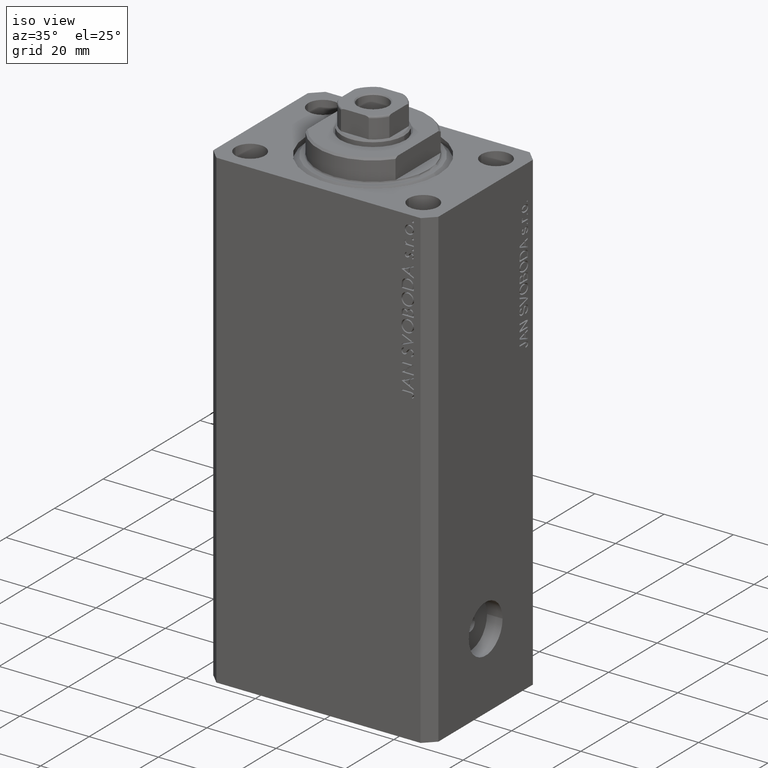
[diagram: clean part render]
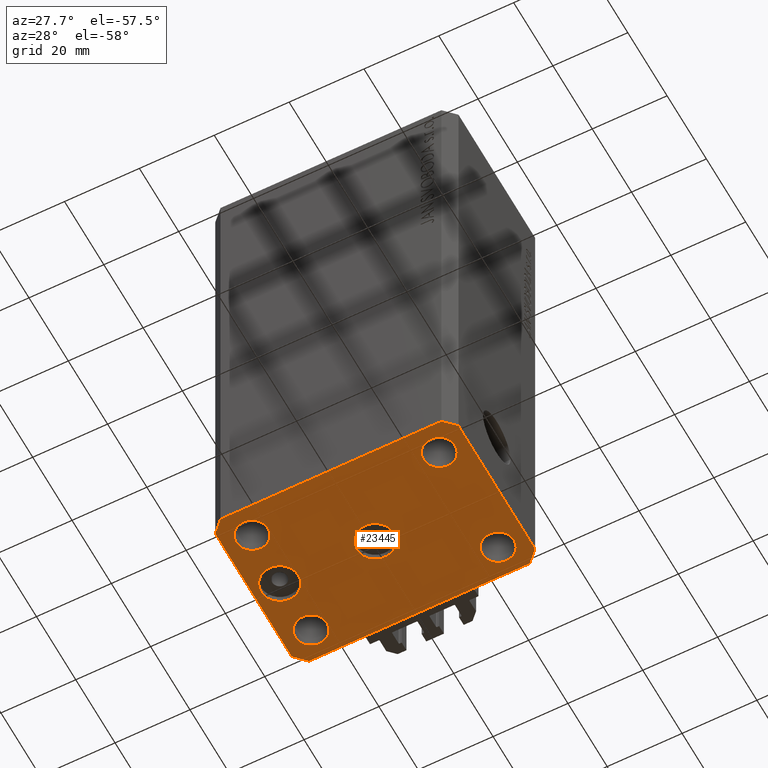
[diagram: tour spotlight — one face highlighted and labeled with its STEP entity id]
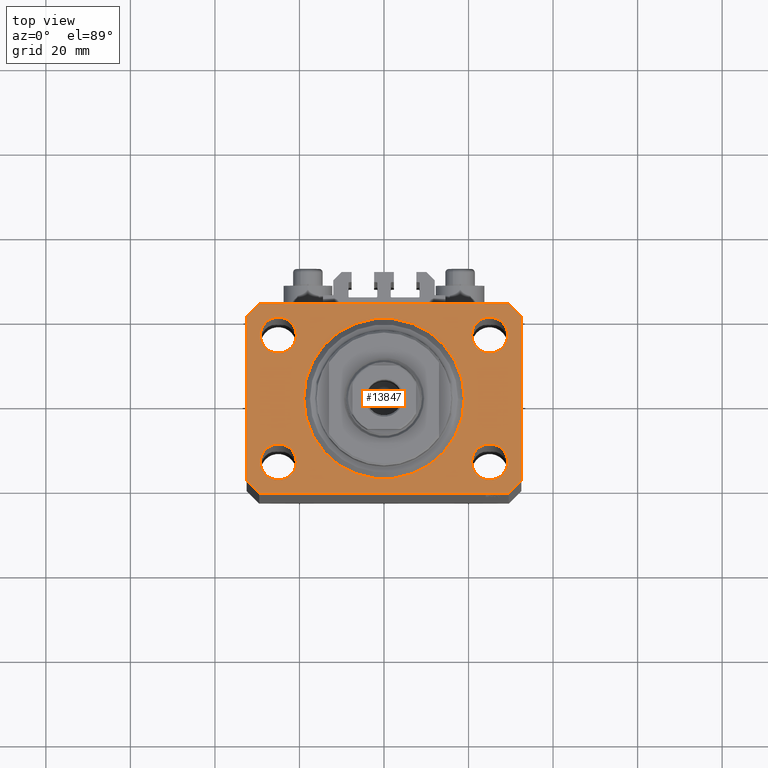
[diagram: tour spotlight — one face highlighted and labeled with its STEP entity id]
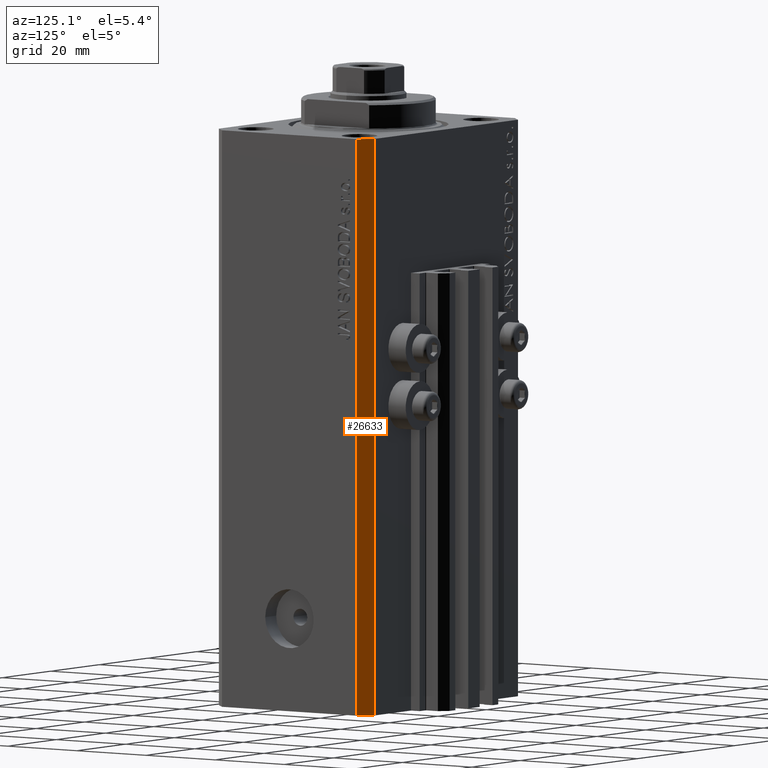
[diagram: tour spotlight — one face highlighted and labeled with its STEP entity id]
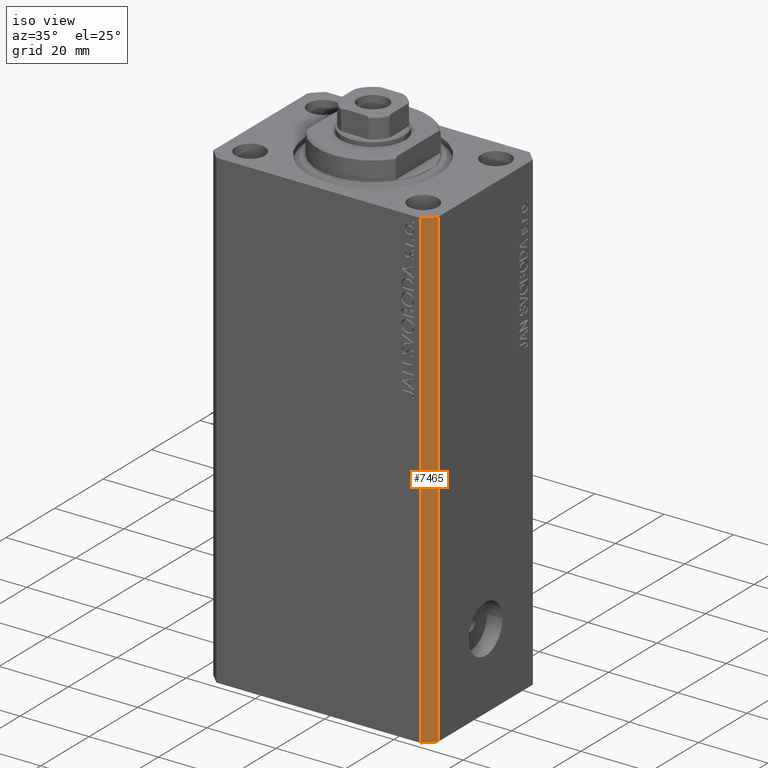
[diagram: tour spotlight — one face highlighted and labeled with its STEP entity id]
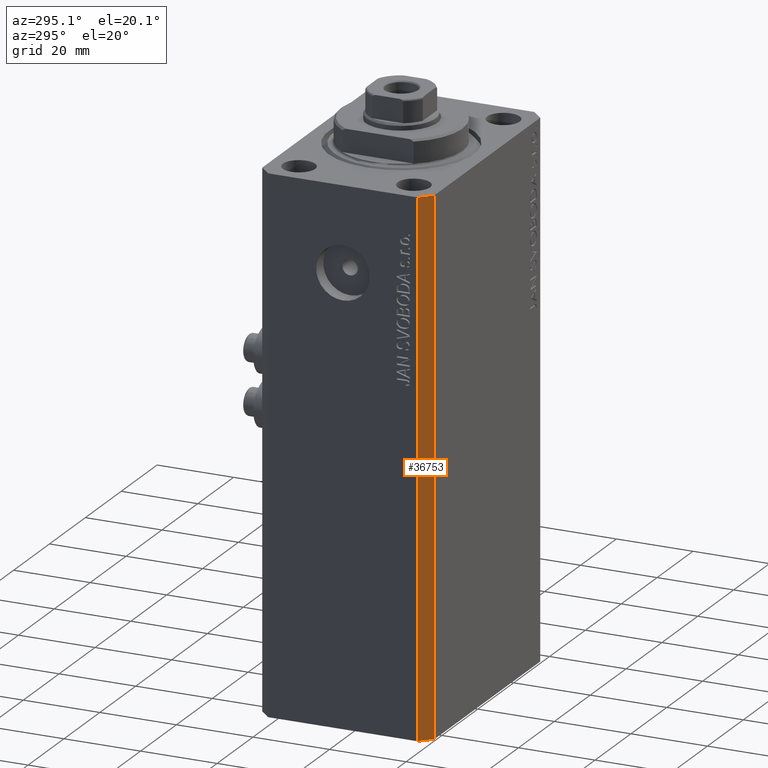
[diagram: tour spotlight — one face highlighted and labeled with its STEP entity id]
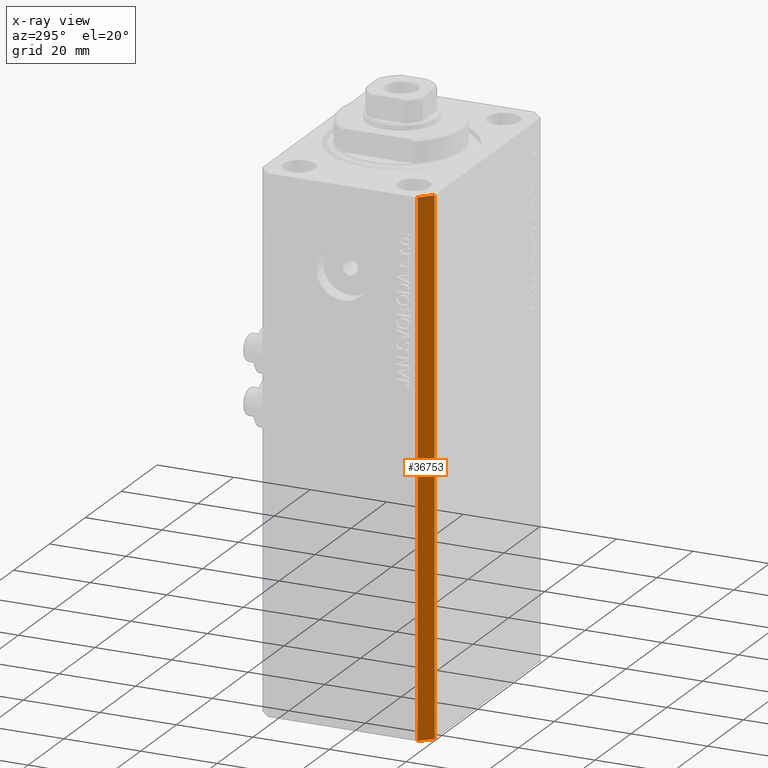
[diagram: x-ray of the same camera — body ghosted, this tour face saturated]
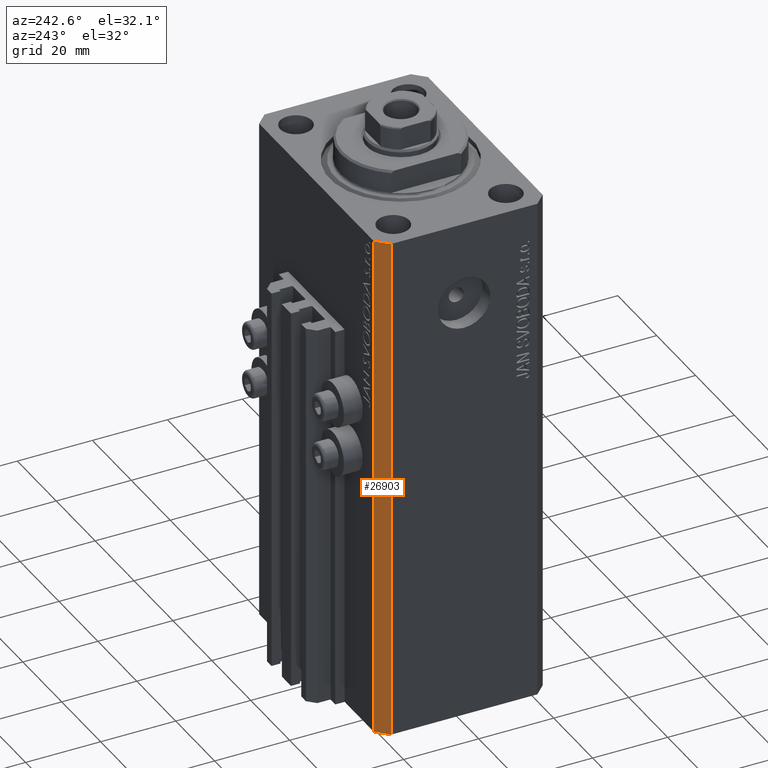
[diagram: tour spotlight — one face highlighted and labeled with its STEP entity id]
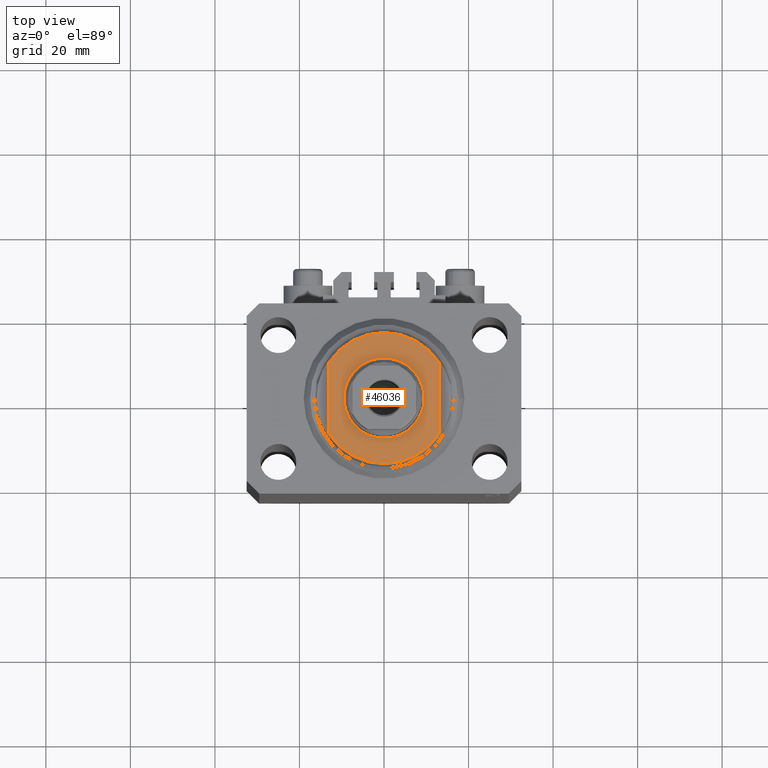
[diagram: tour spotlight — one face highlighted and labeled with its STEP entity id]
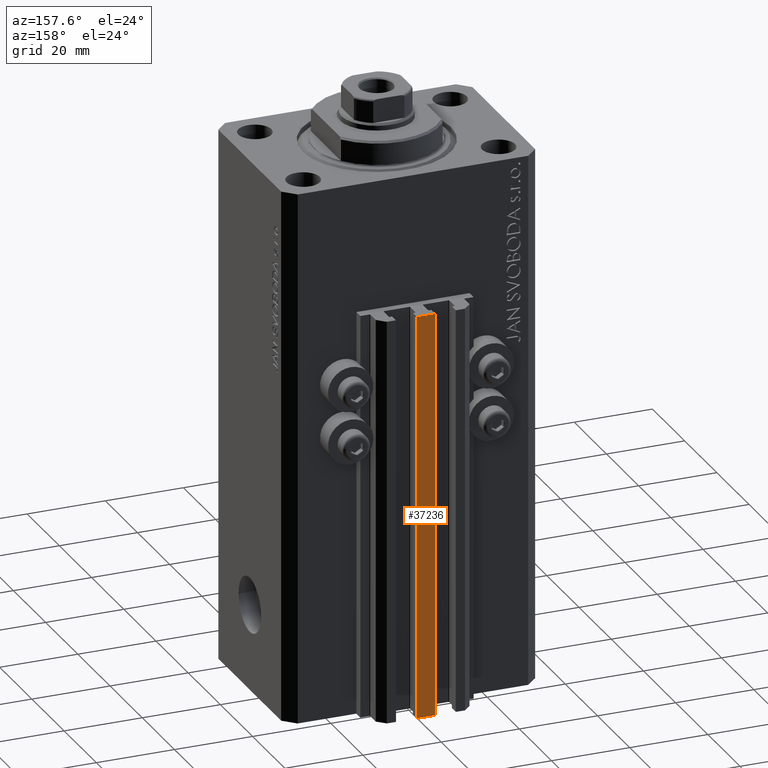
[diagram: tour spotlight — one face highlighted and labeled with its STEP entity id]
A machine part: a face-by-face anatomy tour. The part has 1038 B-rep faces; the first image is the clean iso view, then the 8 largest visible faces are spotlighted one at a time (largest first), each with its STEP entity span.

Face 1 — auxiliary view, entity #23445. In plain terms, the highlighted planar face has unit normal (0, 0, 1).
Definition (entity closure, byte-faithful):
#290 = LINE ( 'NONE', #32617, #22179 ) ;
#517 = CARTESIAN_POINT ( 'NONE',  ( -30.49999999999665690, 0.000000000000000000, -137.0000000000000000 ) ) ;
#663 = FACE_BOUND ( 'NONE', #39598, .T. ) ;
#876 = EDGE_LOOP ( 'NONE', ( #24162, #21585 ) ) ;
#962 = VERTEX_POINT ( 'NONE', #38123 ) ;
#1722 = VECTOR ( 'NONE', #43595, 1000.000000000000000 ) ;
#1775 = DIRECTION ( 'NONE',  ( 0.7071067811865474617, -0.7071067811865474617, 0.000000000000000000 ) ) ;
#2018 = VERTEX_POINT ( 'NONE', #517 ) ;
#2138 = EDGE_CURVE ( 'NONE', #37415, #45231, #24438, .T. ) ;
#2649 = CARTESIAN_POINT ( 'NONE',  ( 29.24999999997631051, -15.00000000000000355, -137.0000000000000000 ) ) ;
#2675 = VECTOR ( 'NONE', #1775, 1000.000000000000114 ) ;
#2685 = DIRECTION ( 'NONE',  ( 1.000000000000000000, 0.000000000000000000, 0.000000000000000000 ) ) ;
#2764 = ORIENTED_EDGE ( 'NONE', *, *, #43707, .F. ) ;
#3114 = CARTESIAN_POINT ( 'NONE',  ( -29.25000000002137668, 14.99999999999999645, -137.0000000000000000 ) ) ;
#3264 = DIRECTION ( 'NONE',  ( 0.000000000000000000, 0.000000000000000000, -1.000000000000000000 ) ) ;
#3478 = CARTESIAN_POINT ( 'NONE',  ( -20.74999999995962341, -15.00000000000000355, -137.0000000000000000 ) ) ;
#3800 = AXIS2_PLACEMENT_3D ( 'NONE', #34708, #24175, #23941 ) ;
#5030 = DIRECTION ( 'NONE',  ( -0.7071067811865344721, 0.7071067811865606734, 0.000000000000000000 ) ) ;
#5170 = EDGE_CURVE ( 'NONE', #43526, #17043, #43521, .T. ) ;
#5609 = CARTESIAN_POINT ( 'NONE',  ( -25.00000000000000000, 14.99999999999999645, -137.0000000000000000 ) ) ;
#5621 = VERTEX_POINT ( 'NONE', #22299 ) ;
#5627 = CARTESIAN_POINT ( 'NONE',  ( -24.99999999999999289, -15.00000000000000355, -137.0000000000000000 ) ) ;
#6092 = DIRECTION ( 'NONE',  ( -0.000000000000000000, -0.000000000000000000, -1.000000000000000000 ) ) ;
#6331 = CARTESIAN_POINT ( 'NONE',  ( 25.00000000000000000, 14.99999999999999289, -137.0000000000000000 ) ) ;
#6654 = EDGE_CURVE ( 'NONE', #12827, #18974, #290, .T. ) ;
#6850 = LINE ( 'NONE', #18089, #7813 ) ;
#6856 = CARTESIAN_POINT ( 'NONE',  ( -25.50000000000000000, 0.000000000000000000, -137.0000000000000000 ) ) ;
#6889 = DIRECTION ( 'NONE',  ( 0.000000000000000000, 0.000000000000000000, -1.000000000000000000 ) ) ;
#7159 = ORIENTED_EDGE ( 'NONE', *, *, #19170, .F. ) ;
#7234 = DIRECTION ( 'NONE',  ( 0.7071067811865483499, 0.7071067811865466846, 0.000000000000000000 ) ) ;
#7813 = VECTOR ( 'NONE', #13806, 1000.000000000000000 ) ;
#7822 = VERTEX_POINT ( 'NONE', #35196 ) ;
#7969 = VECTOR ( 'NONE', #5030, 1000.000000000000000 ) ;
#8077 = CARTESIAN_POINT ( 'NONE',  ( 0.000000000000000000, 0.000000000000000000, -137.0000000000000000 ) ) ;
#8229 = CARTESIAN_POINT ( 'NONE',  ( -20.50000000000333955, 6.123233995732674066E-16, -137.0000000000000000 ) ) ;
#8241 = ORIENTED_EDGE ( 'NONE', *, *, #15875, .F. ) ;
#8592 = DIRECTION ( 'NONE',  ( -1.000000000000000000, 0.000000000000000000, 0.000000000000000000 ) ) ;
#9846 = CARTESIAN_POINT ( 'NONE',  ( 24.99999999999999289, -15.00000000000000355, -137.0000000000000000 ) ) ;
#10205 = VERTEX_POINT ( 'NONE', #34320 ) ;
#10956 = FACE_BOUND ( 'NONE', #26265, .T. ) ;
#11146 = AXIS2_PLACEMENT_3D ( 'NONE', #6856, #3264, #43462 ) ;
#11798 = VECTOR ( 'NONE', #14230, 1000.000000000000000 ) ;
#12196 = AXIS2_PLACEMENT_3D ( 'NONE', #5627, #6092, #20219 ) ;
#12445 = DIRECTION ( 'NONE',  ( -0.000000000000000000, -0.000000000000000000, -1.000000000000000000 ) ) ;
#12827 = VERTEX_POINT ( 'NONE', #26348 ) ;
#12930 = CARTESIAN_POINT ( 'NONE',  ( 32.49999999999702993, 19.49999999999945999, -137.0000000000000000 ) ) ;
#12980 = ORIENTED_EDGE ( 'NONE', *, *, #38216, .F. ) ;
#13113 = VERTEX_POINT ( 'NONE', #44710 ) ;
#13307 = CARTESIAN_POINT ( 'NONE',  ( 32.49999999999702993, 19.49999999999945999, -137.0000000000000000 ) ) ;
#13806 = DIRECTION ( 'NONE',  ( 0.000000000000000000, -1.000000000000000000, 0.000000000000000000 ) ) ;
#13824 = EDGE_LOOP ( 'NONE', ( #33847, #22545, #18683, #23868, #17494, #47078, #7159, #33263 ) ) ;
#14230 = DIRECTION ( 'NONE',  ( -1.000000000000000000, -3.528251137580330676E-16, 0.000000000000000000 ) ) ;
#14410 = LINE ( 'NONE', #29020, #1722 ) ;
#14675 = CARTESIAN_POINT ( 'NONE',  ( -29.49999999999650413, 22.49999999999949907, -137.0000000000000000 ) ) ;
#14692 = ORIENTED_EDGE ( 'NONE', *, *, #31282, .F. ) ;
#15229 = EDGE_CURVE ( 'NONE', #13113, #29534, #32897, .T. ) ;
#15647 = EDGE_CURVE ( 'NONE', #26295, #41264, #42861, .T. ) ;
#15875 = EDGE_CURVE ( 'NONE', #45231, #37415, #34460, .T. ) ;
#16344 = ORIENTED_EDGE ( 'NONE', *, *, #30955, .F. ) ;
#16447 = AXIS2_PLACEMENT_3D ( 'NONE', #44746, #40463, #8592 ) ;
#16619 = DIRECTION ( 'NONE',  ( 1.000000000000000000, 0.000000000000000000, 0.000000000000000000 ) ) ;
#16669 = DIRECTION ( 'NONE',  ( -1.000000000000000000, 0.000000000000000000, 0.000000000000000000 ) ) ;
#16864 = CARTESIAN_POINT ( 'NONE',  ( -29.49999999999650413, 22.49999999999949907, -137.0000000000000000 ) ) ;
#17042 = CARTESIAN_POINT ( 'NONE',  ( 32.49999999999651124, -19.49999999999949196, -137.0000000000000000 ) ) ;
#17043 = VERTEX_POINT ( 'NONE', #3478 ) ;
#17445 = CARTESIAN_POINT ( 'NONE',  ( 32.49999999999651124, -19.49999999999949196, -137.0000000000000000 ) ) ;
#17494 = ORIENTED_EDGE ( 'NONE', *, *, #20086, .F. ) ;
#18089 = CARTESIAN_POINT ( 'NONE',  ( -32.49999999999650413, 19.49999999999949907, -137.0000000000000000 ) ) ;
#18347 = CARTESIAN_POINT ( 'NONE',  ( -32.49999999999650413, -19.49999999999949907, -137.0000000000000000 ) ) ;
#18601 = PLANE ( 'NONE',  #22437 ) ;
#18683 = ORIENTED_EDGE ( 'NONE', *, *, #19970, .F. ) ;
#18771 = ORIENTED_EDGE ( 'NONE', *, *, #5170, .F. ) ;
#18832 = AXIS2_PLACEMENT_3D ( 'NONE', #43968, #6889, #25793 ) ;
#18843 = FACE_BOUND ( 'NONE', #37988, .T. ) ;
#18974 = VERTEX_POINT ( 'NONE', #17445 ) ;
#19170 = EDGE_CURVE ( 'NONE', #5621, #45824, #6850, .T. ) ;
#19227 = CARTESIAN_POINT ( 'NONE',  ( 20.75000000002367884, -15.00000000000000355, -137.0000000000000000 ) ) ;
#19970 = EDGE_CURVE ( 'NONE', #18974, #38685, #42646, .T. ) ;
#19971 = LINE ( 'NONE', #16864, #38661 ) ;
#20086 = EDGE_CURVE ( 'NONE', #40714, #12827, #14410, .T. ) ;
#20089 = DIRECTION ( 'NONE',  ( 1.000000000000000000, 0.000000000000000000, 0.000000000000000000 ) ) ;
#20219 = DIRECTION ( 'NONE',  ( 1.000000000000000000, 0.000000000000000000, 0.000000000000000000 ) ) ;
#20258 = CARTESIAN_POINT ( 'NONE',  ( -25.50000000000000000, 0.000000000000000000, -137.0000000000000000 ) ) ;
#20364 = CIRCLE ( 'NONE', #18832, 5.000000000000000000 ) ;
#20437 = DIRECTION ( 'NONE',  ( -0.000000000000000000, -0.000000000000000000, -1.000000000000000000 ) ) ;
#21585 = ORIENTED_EDGE ( 'NONE', *, *, #46960, .F. ) ;
#21697 = CARTESIAN_POINT ( 'NONE',  ( -25.00000000000000000, 14.99999999999999645, -137.0000000000000000 ) ) ;
#21969 = FACE_BOUND ( 'NONE', #25568, .T. ) ;
#22098 = CARTESIAN_POINT ( 'NONE',  ( -20.74999999997862687, 14.99999999999999645, -137.0000000000000000 ) ) ;
#22179 = VECTOR ( 'NONE', #7234, 1000.000000000000000 ) ;
#22199 = AXIS2_PLACEMENT_3D ( 'NONE', #45234, #12445, #20089 ) ;
#22299 = CARTESIAN_POINT ( 'NONE',  ( -32.49999999999650413, 19.49999999999949907, -137.0000000000000000 ) ) ;
#22437 = AXIS2_PLACEMENT_3D ( 'NONE', #8077, #40173, #36570 ) ;
#22444 = FACE_BOUND ( 'NONE', #30069, .T. ) ;
#22545 = ORIENTED_EDGE ( 'NONE', *, *, #29072, .F. ) ;
#23209 = ORIENTED_EDGE ( 'NONE', *, *, #35046, .F. ) ;
#23323 = LINE ( 'NONE', #42210, #2675 ) ;
#23445 = ADVANCED_FACE ( 'NONE', ( #18843, #21969, #22444, #10956, #36813, #663, #40879 ), #18601, .F. ) ;
#23868 = ORIENTED_EDGE ( 'NONE', *, *, #6654, .F. ) ;
#23941 = DIRECTION ( 'NONE',  ( 1.000000000000000000, 0.000000000000000000, 0.000000000000000000 ) ) ;
#24132 = AXIS2_PLACEMENT_3D ( 'NONE', #6331, #28131, #39618 ) ;
#24162 = ORIENTED_EDGE ( 'NONE', *, *, #15229, .F. ) ;
#24175 = DIRECTION ( 'NONE',  ( -0.000000000000000000, -0.000000000000000000, -1.000000000000000000 ) ) ;
#24438 = CIRCLE ( 'NONE', #3800, 4.249999999976314058 ) ;
#24471 = DIRECTION ( 'NONE',  ( -0.000000000000000000, -0.000000000000000000, -1.000000000000000000 ) ) ;
#24521 = AXIS2_PLACEMENT_3D ( 'NONE', #9846, #24471, #2685 ) ;
#24766 = LINE ( 'NONE', #36238, #11798 ) ;
#25568 = EDGE_LOOP ( 'NONE', ( #2764, #14692 ) ) ;
#25650 = CIRCLE ( 'NONE', #26436, 4.250000000021375790 ) ;
#25793 = DIRECTION ( 'NONE',  ( -1.000000000000000000, 0.000000000000000000, 0.000000000000000000 ) ) ;
#26265 = EDGE_LOOP ( 'NONE', ( #40128, #8241 ) ) ;
#26295 = VERTEX_POINT ( 'NONE', #3114 ) ;
#26348 = CARTESIAN_POINT ( 'NONE',  ( 29.49999999999650413, -22.49999999999949196, -137.0000000000000000 ) ) ;
#26436 = AXIS2_PLACEMENT_3D ( 'NONE', #5609, #20437, #16619 ) ;
#26569 = DIRECTION ( 'NONE',  ( -0.000000000000000000, -0.000000000000000000, -1.000000000000000000 ) ) ;
#28131 = DIRECTION ( 'NONE',  ( -0.000000000000000000, -0.000000000000000000, -1.000000000000000000 ) ) ;
#28360 = AXIS2_PLACEMENT_3D ( 'NONE', #21697, #36070, #36304 ) ;
#28654 = EDGE_CURVE ( 'NONE', #7822, #31849, #24766, .T. ) ;
#29020 = CARTESIAN_POINT ( 'NONE',  ( -29.49999999999650413, -22.49999999999949907, -137.0000000000000000 ) ) ;
#29072 = EDGE_CURVE ( 'NONE', #38685, #7822, #45948, .T. ) ;
#29534 = VERTEX_POINT ( 'NONE', #43887 ) ;
#29654 = CIRCLE ( 'NONE', #47230, 4.250000000040370374 ) ;
#30069 = EDGE_LOOP ( 'NONE', ( #12980, #18771 ) ) ;
#30955 = EDGE_CURVE ( 'NONE', #10205, #962, #39390, .T. ) ;
#31282 = EDGE_CURVE ( 'NONE', #37024, #2018, #34004, .T. ) ;
#31283 = DIRECTION ( 'NONE',  ( 0.000000000000000000, 0.000000000000000000, -1.000000000000000000 ) ) ;
#31658 = EDGE_CURVE ( 'NONE', #45824, #40714, #23323, .T. ) ;
#31849 = VERTEX_POINT ( 'NONE', #14675 ) ;
#32477 = EDGE_CURVE ( 'NONE', #41264, #26295, #25650, .T. ) ;
#32617 = CARTESIAN_POINT ( 'NONE',  ( 29.49999999999650413, -22.49999999999949196, -137.0000000000000000 ) ) ;
#32897 = CIRCLE ( 'NONE', #22199, 4.249999999957291053 ) ;
#33263 = ORIENTED_EDGE ( 'NONE', *, *, #43819, .F. ) ;
#33276 = DIRECTION ( 'NONE',  ( 1.000000000000000000, 0.000000000000000000, 0.000000000000000000 ) ) ;
#33847 = ORIENTED_EDGE ( 'NONE', *, *, #28654, .F. ) ;
#34004 = CIRCLE ( 'NONE', #43946, 4.999999999996659561 ) ;
#34320 = CARTESIAN_POINT ( 'NONE',  ( 5.000000000000000000, 6.123233995736765296E-16, -137.0000000000000000 ) ) ;
#34460 = CIRCLE ( 'NONE', #24521, 4.249999999976314058 ) ;
#34708 = CARTESIAN_POINT ( 'NONE',  ( 24.99999999999999289, -15.00000000000000355, -137.0000000000000000 ) ) ;
#35046 = EDGE_CURVE ( 'NONE', #962, #10205, #20364, .T. ) ;
#35196 = CARTESIAN_POINT ( 'NONE',  ( 29.49999999999707967, 22.49999999999952038, -137.0000000000000000 ) ) ;
#35285 = DIRECTION ( 'NONE',  ( -0.7071067811865474617, -0.7071067811865474617, 0.000000000000000000 ) ) ;
#36070 = DIRECTION ( 'NONE',  ( -0.000000000000000000, -0.000000000000000000, -1.000000000000000000 ) ) ;
#36238 = CARTESIAN_POINT ( 'NONE',  ( 29.49999999999707967, 22.49999999999952038, -137.0000000000000000 ) ) ;
#36304 = DIRECTION ( 'NONE',  ( 1.000000000000000000, 0.000000000000000000, 0.000000000000000000 ) ) ;
#36570 = DIRECTION ( 'NONE',  ( 1.000000000000000000, 0.000000000000000000, -0.000000000000000000 ) ) ;
#36813 = FACE_BOUND ( 'NONE', #876, .T. ) ;
#37024 = VERTEX_POINT ( 'NONE', #8229 ) ;
#37415 = VERTEX_POINT ( 'NONE', #2649 ) ;
#37531 = ORIENTED_EDGE ( 'NONE', *, *, #15647, .F. ) ;
#37535 = CARTESIAN_POINT ( 'NONE',  ( -29.25000000004036593, -15.00000000000000355, -137.0000000000000000 ) ) ;
#37988 = EDGE_LOOP ( 'NONE', ( #23209, #16344 ) ) ;
#38123 = CARTESIAN_POINT ( 'NONE',  ( -5.000000000000000000, 0.000000000000000000, -137.0000000000000000 ) ) ;
#38216 = EDGE_CURVE ( 'NONE', #17043, #43526, #29654, .T. ) ;
#38661 = VECTOR ( 'NONE', #35285, 1000.000000000000114 ) ;
#38685 = VERTEX_POINT ( 'NONE', #13307 ) ;
#39390 = CIRCLE ( 'NONE', #16447, 5.000000000000000000 ) ;
#39598 = EDGE_LOOP ( 'NONE', ( #41581, #37531 ) ) ;
#39618 = DIRECTION ( 'NONE',  ( 1.000000000000000000, 0.000000000000000000, 0.000000000000000000 ) ) ;
#40128 = ORIENTED_EDGE ( 'NONE', *, *, #2138, .F. ) ;
#40173 = DIRECTION ( 'NONE',  ( 0.000000000000000000, 0.000000000000000000, 1.000000000000000000 ) ) ;
#40180 = CARTESIAN_POINT ( 'NONE',  ( -29.49999999999650413, -22.49999999999949907, -137.0000000000000000 ) ) ;
#40463 = DIRECTION ( 'NONE',  ( 0.000000000000000000, 0.000000000000000000, -1.000000000000000000 ) ) ;
#40702 = CARTESIAN_POINT ( 'NONE',  ( -24.99999999999999289, -15.00000000000000355, -137.0000000000000000 ) ) ;
#40714 = VERTEX_POINT ( 'NONE', #40180 ) ;
#40879 = FACE_OUTER_BOUND ( 'NONE', #13824, .T. ) ;
#41264 = VERTEX_POINT ( 'NONE', #22098 ) ;
#41581 = ORIENTED_EDGE ( 'NONE', *, *, #32477, .F. ) ;
#42210 = CARTESIAN_POINT ( 'NONE',  ( -32.49999999999650413, -19.49999999999949907, -137.0000000000000000 ) ) ;
#42235 = VECTOR ( 'NONE', #43362, 1000.000000000000000 ) ;
#42646 = LINE ( 'NONE', #17042, #42235 ) ;
#42861 = CIRCLE ( 'NONE', #28360, 4.250000000021375790 ) ;
#43362 = DIRECTION ( 'NONE',  ( 1.334402673828349134E-14, 1.000000000000000000, 0.000000000000000000 ) ) ;
#43462 = DIRECTION ( 'NONE',  ( -1.000000000000000000, 0.000000000000000000, 0.000000000000000000 ) ) ;
#43521 = CIRCLE ( 'NONE', #12196, 4.250000000040370374 ) ;
#43526 = VERTEX_POINT ( 'NONE', #37535 ) ;
#43595 = DIRECTION ( 'NONE',  ( 1.000000000000000000, 1.176083712526788232E-16, 0.000000000000000000 ) ) ;
#43707 = EDGE_CURVE ( 'NONE', #2018, #37024, #45546, .T. ) ;
#43819 = EDGE_CURVE ( 'NONE', #31849, #5621, #19971, .T. ) ;
#43887 = CARTESIAN_POINT ( 'NONE',  ( 20.75000000004271072, 14.99999999999999289, -137.0000000000000000 ) ) ;
#43946 = AXIS2_PLACEMENT_3D ( 'NONE', #20258, #31283, #16669 ) ;
#43968 = CARTESIAN_POINT ( 'NONE',  ( 0.000000000000000000, 0.000000000000000000, -137.0000000000000000 ) ) ;
#44710 = CARTESIAN_POINT ( 'NONE',  ( 29.24999999995729283, 14.99999999999999289, -137.0000000000000000 ) ) ;
#44746 = CARTESIAN_POINT ( 'NONE',  ( 0.000000000000000000, 0.000000000000000000, -137.0000000000000000 ) ) ;
#44753 = CIRCLE ( 'NONE', #24132, 4.249999999957291053 ) ;
#45231 = VERTEX_POINT ( 'NONE', #19227 ) ;
#45234 = CARTESIAN_POINT ( 'NONE',  ( 25.00000000000000000, 14.99999999999999289, -137.0000000000000000 ) ) ;
#45546 = CIRCLE ( 'NONE', #11146, 4.999999999996659561 ) ;
#45824 = VERTEX_POINT ( 'NONE', #18347 ) ;
#45948 = LINE ( 'NONE', #12930, #7969 ) ;
#46960 = EDGE_CURVE ( 'NONE', #29534, #13113, #44753, .T. ) ;
#47078 = ORIENTED_EDGE ( 'NONE', *, *, #31658, .F. ) ;
#47230 = AXIS2_PLACEMENT_3D ( 'NONE', #40702, #26569, #33276 ) ;

Face 2 — top view, entity #13847. In plain terms, the highlighted planar face has unit normal (0, 0, 1).
Definition (entity closure, byte-faithful):
#173 = CARTESIAN_POINT ( 'NONE',  ( 32.49999999999651124, -19.49999999999949196, 0.000000000000000000 ) ) ;
#338 = VERTEX_POINT ( 'NONE', #11917 ) ;
#353 = CARTESIAN_POINT ( 'NONE',  ( -25.00000000000000000, 14.99999999999999645, 0.000000000000000000 ) ) ;
#856 = EDGE_CURVE ( 'NONE', #8037, #15912, #26539, .T. ) ;
#1154 = LINE ( 'NONE', #8106, #14535 ) ;
#1544 = ORIENTED_EDGE ( 'NONE', *, *, #21781, .T. ) ;
#2178 = DIRECTION ( 'NONE',  ( 0.000000000000000000, 0.000000000000000000, 1.000000000000000000 ) ) ;
#2366 = EDGE_CURVE ( 'NONE', #36788, #27618, #1154, .T. ) ;
#2439 = VERTEX_POINT ( 'NONE', #12642 ) ;
#2466 = ORIENTED_EDGE ( 'NONE', *, *, #38092, .F. ) ;
#2634 = EDGE_CURVE ( 'NONE', #23736, #9142, #33557, .T. ) ;
#2976 = EDGE_LOOP ( 'NONE', ( #12954, #43754 ) ) ;
#3060 = ORIENTED_EDGE ( 'NONE', *, *, #29244, .T. ) ;
#3091 = ORIENTED_EDGE ( 'NONE', *, *, #14690, .F. ) ;
#3099 = DIRECTION ( 'NONE',  ( 0.000000000000000000, 0.000000000000000000, 1.000000000000000000 ) ) ;
#3277 = DIRECTION ( 'NONE',  ( 1.000000000000000000, 0.000000000000000000, 0.000000000000000000 ) ) ;
#3377 = DIRECTION ( 'NONE',  ( 1.000000000000000000, 1.176083712526788232E-16, 0.000000000000000000 ) ) ;
#3575 = FACE_BOUND ( 'NONE', #33130, .T. ) ;
#3851 = CARTESIAN_POINT ( 'NONE',  ( -29.49999999999650413, -22.49999999999949907, 0.000000000000000000 ) ) ;
#4000 = EDGE_LOOP ( 'NONE', ( #28787, #34639 ) ) ;
#4289 = AXIS2_PLACEMENT_3D ( 'NONE', #15569, #30412, #44538 ) ;
#4390 = AXIS2_PLACEMENT_3D ( 'NONE', #42457, #42220, #28117 ) ;
#4443 = DIRECTION ( 'NONE',  ( 0.000000000000000000, 0.000000000000000000, 1.000000000000000000 ) ) ;
#4502 = ORIENTED_EDGE ( 'NONE', *, *, #2366, .T. ) ;
#5934 = EDGE_CURVE ( 'NONE', #28383, #22641, #7819, .T. ) ;
#6449 = DIRECTION ( 'NONE',  ( 0.7071067811865474617, -0.7071067811865474617, 0.000000000000000000 ) ) ;
#6467 = VECTOR ( 'NONE', #6449, 1000.000000000000114 ) ;
#6879 = DIRECTION ( 'NONE',  ( 1.334402673828349134E-14, 1.000000000000000000, 0.000000000000000000 ) ) ;
#7757 = DIRECTION ( 'NONE',  ( 0.000000000000000000, 0.000000000000000000, 1.000000000000000000 ) ) ;
#7819 = LINE ( 'NONE', #173, #17564 ) ;
#8037 = VERTEX_POINT ( 'NONE', #34918 ) ;
#8106 = CARTESIAN_POINT ( 'NONE',  ( 29.49999999999707967, 22.49999999999952038, 0.000000000000000000 ) ) ;
#8180 = ORIENTED_EDGE ( 'NONE', *, *, #5934, .T. ) ;
#8674 = ORIENTED_EDGE ( 'NONE', *, *, #39396, .F. ) ;
#9142 = VERTEX_POINT ( 'NONE', #34375 ) ;
#9581 = DIRECTION ( 'NONE',  ( 1.000000000000000000, 0.000000000000000000, 0.000000000000000000 ) ) ;
#9788 = LINE ( 'NONE', #31833, #6467 ) ;
#9832 = LINE ( 'NONE', #27808, #37470 ) ;
#10723 = DIRECTION ( 'NONE',  ( 0.7071067811865483499, 0.7071067811865466846, 0.000000000000000000 ) ) ;
#11192 = CARTESIAN_POINT ( 'NONE',  ( 32.49999999999702993, 19.49999999999945999, 0.000000000000000000 ) ) ;
#11451 = ORIENTED_EDGE ( 'NONE', *, *, #43474, .F. ) ;
#11471 = AXIS2_PLACEMENT_3D ( 'NONE', #47367, #39965, #46906 ) ;
#11474 = CARTESIAN_POINT ( 'NONE',  ( -32.49999999999650413, -19.49999999999949907, 0.000000000000000000 ) ) ;
#11499 = CIRCLE ( 'NONE', #38271, 4.249999999957291053 ) ;
#11815 = CARTESIAN_POINT ( 'NONE',  ( -25.00000000000000000, 14.99999999999999645, 0.000000000000000000 ) ) ;
#11917 = CARTESIAN_POINT ( 'NONE',  ( 29.49999999999650413, -22.49999999999949196, 0.000000000000000000 ) ) ;
#12626 = DIRECTION ( 'NONE',  ( 0.000000000000000000, 0.000000000000000000, 1.000000000000000000 ) ) ;
#12642 = CARTESIAN_POINT ( 'NONE',  ( -32.49999999999650413, 19.49999999999949907, 0.000000000000000000 ) ) ;
#12686 = CIRCLE ( 'NONE', #4289, 19.00000000000000000 ) ;
#12954 = ORIENTED_EDGE ( 'NONE', *, *, #28220, .F. ) ;
#13559 = CARTESIAN_POINT ( 'NONE',  ( -20.74999999997862687, 14.99999999999999645, 0.000000000000000000 ) ) ;
#13643 = PLANE ( 'NONE',  #11471 ) ;
#13847 = ADVANCED_FACE ( 'NONE', ( #3575, #28957, #46670, #14586, #13888, #43529 ), #13643, .T. ) ;
#13868 = CARTESIAN_POINT ( 'NONE',  ( -29.49999999999650413, -22.49999999999949907, 0.000000000000000000 ) ) ;
#13888 = FACE_BOUND ( 'NONE', #4000, .T. ) ;
#14167 = EDGE_CURVE ( 'NONE', #27618, #2439, #9832, .T. ) ;
#14535 = VECTOR ( 'NONE', #30364, 1000.000000000000000 ) ;
#14576 = DIRECTION ( 'NONE',  ( 1.000000000000000000, 0.000000000000000000, 0.000000000000000000 ) ) ;
#14586 = FACE_BOUND ( 'NONE', #36742, .T. ) ;
#14690 = EDGE_CURVE ( 'NONE', #33826, #26120, #11499, .T. ) ;
#15569 = CARTESIAN_POINT ( 'NONE',  ( 0.000000000000000000, 0.000000000000000000, 0.000000000000000000 ) ) ;
#15648 = DIRECTION ( 'NONE',  ( 1.000000000000000000, 0.000000000000000000, 0.000000000000000000 ) ) ;
#15774 = ORIENTED_EDGE ( 'NONE', *, *, #44074, .T. ) ;
#15878 = CARTESIAN_POINT ( 'NONE',  ( -29.49999999999650413, 22.49999999999949907, 0.000000000000000000 ) ) ;
#15912 = VERTEX_POINT ( 'NONE', #37363 ) ;
#16262 = VERTEX_POINT ( 'NONE', #30603 ) ;
#16385 = EDGE_LOOP ( 'NONE', ( #33132, #2466 ) ) ;
#16442 = ORIENTED_EDGE ( 'NONE', *, *, #14167, .T. ) ;
#16780 = CARTESIAN_POINT ( 'NONE',  ( 24.99999999999999289, -15.00000000000000355, 0.000000000000000000 ) ) ;
#17564 = VECTOR ( 'NONE', #6879, 1000.000000000000000 ) ;
#17901 = CARTESIAN_POINT ( 'NONE',  ( 29.49999999999650413, -22.49999999999949196, 0.000000000000000000 ) ) ;
#18015 = VECTOR ( 'NONE', #3377, 1000.000000000000000 ) ;
#18791 = VECTOR ( 'NONE', #10723, 1000.000000000000000 ) ;
#19710 = AXIS2_PLACEMENT_3D ( 'NONE', #16780, #2178, #41681 ) ;
#19812 = CARTESIAN_POINT ( 'NONE',  ( 29.24999999995729283, 14.99999999999999289, 0.000000000000000000 ) ) ;
#20913 = AXIS2_PLACEMENT_3D ( 'NONE', #353, #25960, #15648 ) ;
#21028 = LINE ( 'NONE', #17901, #18791 ) ;
#21424 = LINE ( 'NONE', #35790, #34691 ) ;
#21561 = CARTESIAN_POINT ( 'NONE',  ( 25.00000000000000000, 14.99999999999999289, 0.000000000000000000 ) ) ;
#21781 = EDGE_CURVE ( 'NONE', #22641, #36788, #29799, .T. ) ;
#22184 = AXIS2_PLACEMENT_3D ( 'NONE', #11815, #7757, #3277 ) ;
#22601 = AXIS2_PLACEMENT_3D ( 'NONE', #45177, #12626, #30820 ) ;
#22641 = VERTEX_POINT ( 'NONE', #11192 ) ;
#23580 = EDGE_LOOP ( 'NONE', ( #4502, #16442, #46691, #3060, #29190, #15774, #8180, #1544 ) ) ;
#23736 = VERTEX_POINT ( 'NONE', #13559 ) ;
#24136 = CIRCLE ( 'NONE', #22601, 19.00000000000000000 ) ;
#24452 = DIRECTION ( 'NONE',  ( -0.7071067811865474617, -0.7071067811865474617, 0.000000000000000000 ) ) ;
#25640 = ORIENTED_EDGE ( 'NONE', *, *, #44462, .F. ) ;
#25960 = DIRECTION ( 'NONE',  ( 0.000000000000000000, 0.000000000000000000, 1.000000000000000000 ) ) ;
#26120 = VERTEX_POINT ( 'NONE', #40549 ) ;
#26539 = CIRCLE ( 'NONE', #4390, 4.250000000040370374 ) ;
#27348 = CIRCLE ( 'NONE', #19710, 4.249999999976314058 ) ;
#27549 = EDGE_CURVE ( 'NONE', #2439, #36414, #21424, .T. ) ;
#27618 = VERTEX_POINT ( 'NONE', #15878 ) ;
#27657 = EDGE_CURVE ( 'NONE', #9142, #23736, #29343, .T. ) ;
#27765 = VECTOR ( 'NONE', #40566, 1000.000000000000000 ) ;
#27808 = CARTESIAN_POINT ( 'NONE',  ( -29.49999999999650413, 22.49999999999949907, 0.000000000000000000 ) ) ;
#27943 = CARTESIAN_POINT ( 'NONE',  ( 32.49999999999651124, -19.49999999999949196, 0.000000000000000000 ) ) ;
#28117 = DIRECTION ( 'NONE',  ( 1.000000000000000000, 0.000000000000000000, 0.000000000000000000 ) ) ;
#28220 = EDGE_CURVE ( 'NONE', #15912, #8037, #46168, .T. ) ;
#28383 = VERTEX_POINT ( 'NONE', #27943 ) ;
#28787 = ORIENTED_EDGE ( 'NONE', *, *, #2634, .F. ) ;
#28957 = FACE_BOUND ( 'NONE', #2976, .T. ) ;
#29190 = ORIENTED_EDGE ( 'NONE', *, *, #32209, .T. ) ;
#29244 = EDGE_CURVE ( 'NONE', #36414, #40662, #9788, .T. ) ;
#29343 = CIRCLE ( 'NONE', #20913, 4.250000000021375790 ) ;
#29799 = LINE ( 'NONE', #44384, #27765 ) ;
#30056 = DIRECTION ( 'NONE',  ( 1.000000000000000000, 0.000000000000000000, 0.000000000000000000 ) ) ;
#30364 = DIRECTION ( 'NONE',  ( -1.000000000000000000, -3.528251137580330676E-16, 0.000000000000000000 ) ) ;
#30412 = DIRECTION ( 'NONE',  ( 0.000000000000000000, 0.000000000000000000, 1.000000000000000000 ) ) ;
#30603 = CARTESIAN_POINT ( 'NONE',  ( 29.24999999997631051, -15.00000000000000355, 0.000000000000000000 ) ) ;
#30820 = DIRECTION ( 'NONE',  ( 1.000000000000000000, 0.000000000000000000, 0.000000000000000000 ) ) ;
#31833 = CARTESIAN_POINT ( 'NONE',  ( -32.49999999999650413, -19.49999999999949907, 0.000000000000000000 ) ) ;
#31875 = DIRECTION ( 'NONE',  ( 1.000000000000000000, 0.000000000000000000, 0.000000000000000000 ) ) ;
#32038 = EDGE_CURVE ( 'NONE', #16262, #41302, #33294, .T. ) ;
#32116 = CARTESIAN_POINT ( 'NONE',  ( 24.99999999999999289, -15.00000000000000355, 0.000000000000000000 ) ) ;
#32209 = EDGE_CURVE ( 'NONE', #40662, #338, #36171, .T. ) ;
#32768 = CARTESIAN_POINT ( 'NONE',  ( -24.99999999999999289, -15.00000000000000355, 0.000000000000000000 ) ) ;
#33130 = EDGE_LOOP ( 'NONE', ( #11451, #25640 ) ) ;
#33132 = ORIENTED_EDGE ( 'NONE', *, *, #32038, .F. ) ;
#33175 = CARTESIAN_POINT ( 'NONE',  ( 25.00000000000000000, 14.99999999999999289, 0.000000000000000000 ) ) ;
#33294 = CIRCLE ( 'NONE', #45518, 4.249999999976314058 ) ;
#33557 = CIRCLE ( 'NONE', #22184, 4.250000000021375790 ) ;
#33668 = CARTESIAN_POINT ( 'NONE',  ( 29.49999999999707967, 22.49999999999952038, 0.000000000000000000 ) ) ;
#33826 = VERTEX_POINT ( 'NONE', #19812 ) ;
#34269 = CIRCLE ( 'NONE', #40403, 4.249999999957291053 ) ;
#34375 = CARTESIAN_POINT ( 'NONE',  ( -29.25000000002137668, 14.99999999999999645, 0.000000000000000000 ) ) ;
#34639 = ORIENTED_EDGE ( 'NONE', *, *, #27657, .F. ) ;
#34691 = VECTOR ( 'NONE', #47035, 1000.000000000000000 ) ;
#34918 = CARTESIAN_POINT ( 'NONE',  ( -29.25000000004036593, -15.00000000000000355, 0.000000000000000000 ) ) ;
#35790 = CARTESIAN_POINT ( 'NONE',  ( -32.49999999999650413, 19.49999999999949907, 0.000000000000000000 ) ) ;
#36171 = LINE ( 'NONE', #3851, #18015 ) ;
#36414 = VERTEX_POINT ( 'NONE', #11474 ) ;
#36742 = EDGE_LOOP ( 'NONE', ( #3091, #8674 ) ) ;
#36788 = VERTEX_POINT ( 'NONE', #33668 ) ;
#37363 = CARTESIAN_POINT ( 'NONE',  ( -20.74999999995962341, -15.00000000000000355, 0.000000000000000000 ) ) ;
#37470 = VECTOR ( 'NONE', #24452, 1000.000000000000114 ) ;
#38092 = EDGE_CURVE ( 'NONE', #41302, #16262, #27348, .T. ) ;
#38271 = AXIS2_PLACEMENT_3D ( 'NONE', #33175, #4443, #30056 ) ;
#39396 = EDGE_CURVE ( 'NONE', #26120, #33826, #34269, .T. ) ;
#39905 = CARTESIAN_POINT ( 'NONE',  ( 19.00000000000000000, 0.000000000000000000, 0.000000000000000000 ) ) ;
#39965 = DIRECTION ( 'NONE',  ( 0.000000000000000000, 0.000000000000000000, 1.000000000000000000 ) ) ;
#40060 = CARTESIAN_POINT ( 'NONE',  ( 20.75000000002367884, -15.00000000000000355, 0.000000000000000000 ) ) ;
#40403 = AXIS2_PLACEMENT_3D ( 'NONE', #21561, #47165, #9581 ) ;
#40549 = CARTESIAN_POINT ( 'NONE',  ( 20.75000000004271072, 14.99999999999999289, 0.000000000000000000 ) ) ;
#40566 = DIRECTION ( 'NONE',  ( -0.7071067811865344721, 0.7071067811865606734, 0.000000000000000000 ) ) ;
#40662 = VERTEX_POINT ( 'NONE', #13868 ) ;
#40905 = CARTESIAN_POINT ( 'NONE',  ( -19.00000000000000000, 2.326828918379970970E-15, 0.000000000000000000 ) ) ;
#41302 = VERTEX_POINT ( 'NONE', #40060 ) ;
#41681 = DIRECTION ( 'NONE',  ( 1.000000000000000000, 0.000000000000000000, 0.000000000000000000 ) ) ;
#42220 = DIRECTION ( 'NONE',  ( 0.000000000000000000, 0.000000000000000000, 1.000000000000000000 ) ) ;
#42389 = DIRECTION ( 'NONE',  ( 0.000000000000000000, 0.000000000000000000, 1.000000000000000000 ) ) ;
#42457 = CARTESIAN_POINT ( 'NONE',  ( -24.99999999999999289, -15.00000000000000355, 0.000000000000000000 ) ) ;
#43474 = EDGE_CURVE ( 'NONE', #46688, #44684, #24136, .T. ) ;
#43529 = FACE_OUTER_BOUND ( 'NONE', #23580, .T. ) ;
#43754 = ORIENTED_EDGE ( 'NONE', *, *, #856, .F. ) ;
#44074 = EDGE_CURVE ( 'NONE', #338, #28383, #21028, .T. ) ;
#44384 = CARTESIAN_POINT ( 'NONE',  ( 32.49999999999702993, 19.49999999999945999, 0.000000000000000000 ) ) ;
#44462 = EDGE_CURVE ( 'NONE', #44684, #46688, #12686, .T. ) ;
#44538 = DIRECTION ( 'NONE',  ( 1.000000000000000000, 0.000000000000000000, 0.000000000000000000 ) ) ;
#44661 = AXIS2_PLACEMENT_3D ( 'NONE', #32768, #3099, #14576 ) ;
#44684 = VERTEX_POINT ( 'NONE', #40905 ) ;
#45177 = CARTESIAN_POINT ( 'NONE',  ( 0.000000000000000000, 0.000000000000000000, 0.000000000000000000 ) ) ;
#45518 = AXIS2_PLACEMENT_3D ( 'NONE', #32116, #42389, #31875 ) ;
#46168 = CIRCLE ( 'NONE', #44661, 4.250000000040370374 ) ;
#46670 = FACE_BOUND ( 'NONE', #16385, .T. ) ;
#46688 = VERTEX_POINT ( 'NONE', #39905 ) ;
#46691 = ORIENTED_EDGE ( 'NONE', *, *, #27549, .T. ) ;
#46906 = DIRECTION ( 'NONE',  ( 1.000000000000000000, 0.000000000000000000, -0.000000000000000000 ) ) ;
#47035 = DIRECTION ( 'NONE',  ( 0.000000000000000000, -1.000000000000000000, 0.000000000000000000 ) ) ;
#47165 = DIRECTION ( 'NONE',  ( 0.000000000000000000, 0.000000000000000000, 1.000000000000000000 ) ) ;
#47367 = CARTESIAN_POINT ( 'NONE',  ( 0.000000000000000000, 0.000000000000000000, 0.000000000000000000 ) ) ;

Face 3 — auxiliary view, entity #26633. In plain terms, the highlighted planar face has unit normal (0.7071, 0.7071, 0).
Definition (entity closure, byte-faithful):
#9 = ORIENTED_EDGE ( 'NONE', *, *, #27674, .T. ) ;
#5030 = DIRECTION ( 'NONE',  ( -0.7071067811865344721, 0.7071067811865606734, 0.000000000000000000 ) ) ;
#6479 = ORIENTED_EDGE ( 'NONE', *, *, #29072, .T. ) ;
#7822 = VERTEX_POINT ( 'NONE', #35196 ) ;
#7969 = VECTOR ( 'NONE', #5030, 1000.000000000000000 ) ;
#8930 = DIRECTION ( 'NONE',  ( 0.000000000000000000, 0.000000000000000000, 1.000000000000000000 ) ) ;
#9680 = DIRECTION ( 'NONE',  ( -0.7071067811865344721, 0.7071067811865606734, 0.000000000000000000 ) ) ;
#11192 = CARTESIAN_POINT ( 'NONE',  ( 32.49999999999702993, 19.49999999999945999, 0.000000000000000000 ) ) ;
#11645 = CARTESIAN_POINT ( 'NONE',  ( 32.49999999999702993, 19.49999999999945999, -137.0000000000000000 ) ) ;
#12930 = CARTESIAN_POINT ( 'NONE',  ( 32.49999999999702993, 19.49999999999945999, -137.0000000000000000 ) ) ;
#13307 = CARTESIAN_POINT ( 'NONE',  ( 32.49999999999702993, 19.49999999999945999, -137.0000000000000000 ) ) ;
#17057 = DIRECTION ( 'NONE',  ( 0.000000000000000000, 0.000000000000000000, 1.000000000000000000 ) ) ;
#19700 = LINE ( 'NONE', #41732, #21675 ) ;
#20077 = ORIENTED_EDGE ( 'NONE', *, *, #21781, .F. ) ;
#21675 = VECTOR ( 'NONE', #17057, 1000.000000000000000 ) ;
#21781 = EDGE_CURVE ( 'NONE', #22641, #36788, #29799, .T. ) ;
#22641 = VERTEX_POINT ( 'NONE', #11192 ) ;
#23783 = LINE ( 'NONE', #45077, #39559 ) ;
#24064 = DIRECTION ( 'NONE',  ( 0.7071067811865606734, 0.7071067811865344721, -0.000000000000000000 ) ) ;
#24840 = AXIS2_PLACEMENT_3D ( 'NONE', #11645, #24064, #9680 ) ;
#26633 = ADVANCED_FACE ( 'NONE', ( #29849 ), #44433, .T. ) ;
#27399 = EDGE_LOOP ( 'NONE', ( #20077, #29420, #6479, #9 ) ) ;
#27674 = EDGE_CURVE ( 'NONE', #7822, #36788, #19700, .T. ) ;
#27765 = VECTOR ( 'NONE', #40566, 1000.000000000000000 ) ;
#29072 = EDGE_CURVE ( 'NONE', #38685, #7822, #45948, .T. ) ;
#29420 = ORIENTED_EDGE ( 'NONE', *, *, #37060, .F. ) ;
#29799 = LINE ( 'NONE', #44384, #27765 ) ;
#29849 = FACE_OUTER_BOUND ( 'NONE', #27399, .T. ) ;
#33668 = CARTESIAN_POINT ( 'NONE',  ( 29.49999999999707967, 22.49999999999952038, 0.000000000000000000 ) ) ;
#35196 = CARTESIAN_POINT ( 'NONE',  ( 29.49999999999707967, 22.49999999999952038, -137.0000000000000000 ) ) ;
#36788 = VERTEX_POINT ( 'NONE', #33668 ) ;
#37060 = EDGE_CURVE ( 'NONE', #38685, #22641, #23783, .T. ) ;
#38685 = VERTEX_POINT ( 'NONE', #13307 ) ;
#39559 = VECTOR ( 'NONE', #8930, 1000.000000000000000 ) ;
#40566 = DIRECTION ( 'NONE',  ( -0.7071067811865344721, 0.7071067811865606734, 0.000000000000000000 ) ) ;
#41732 = CARTESIAN_POINT ( 'NONE',  ( 29.49999999999707967, 22.49999999999952038, -137.0000000000000000 ) ) ;
#44384 = CARTESIAN_POINT ( 'NONE',  ( 32.49999999999702993, 19.49999999999945999, 0.000000000000000000 ) ) ;
#44433 = PLANE ( 'NONE',  #24840 ) ;
#45077 = CARTESIAN_POINT ( 'NONE',  ( 32.49999999999702993, 19.49999999999945999, -137.0000000000000000 ) ) ;
#45948 = LINE ( 'NONE', #12930, #7969 ) ;

Face 4 — iso view, entity #7465. In plain terms, the highlighted planar face has unit normal (0.7071, -0.7071, 0).
Definition (entity closure, byte-faithful):
#290 = LINE ( 'NONE', #32617, #22179 ) ;
#297 = PLANE ( 'NONE',  #26049 ) ;
#338 = VERTEX_POINT ( 'NONE', #11917 ) ;
#6654 = EDGE_CURVE ( 'NONE', #12827, #18974, #290, .T. ) ;
#7234 = DIRECTION ( 'NONE',  ( 0.7071067811865483499, 0.7071067811865466846, 0.000000000000000000 ) ) ;
#7465 = ADVANCED_FACE ( 'NONE', ( #33323 ), #297, .T. ) ;
#9492 = ORIENTED_EDGE ( 'NONE', *, *, #6654, .T. ) ;
#10723 = DIRECTION ( 'NONE',  ( 0.7071067811865483499, 0.7071067811865466846, 0.000000000000000000 ) ) ;
#10824 = DIRECTION ( 'NONE',  ( 0.7071067811865483499, 0.7071067811865467956, 0.000000000000000000 ) ) ;
#11283 = EDGE_CURVE ( 'NONE', #18974, #28383, #45727, .T. ) ;
#11917 = CARTESIAN_POINT ( 'NONE',  ( 29.49999999999650413, -22.49999999999949196, 0.000000000000000000 ) ) ;
#12693 = DIRECTION ( 'NONE',  ( 0.000000000000000000, 0.000000000000000000, 1.000000000000000000 ) ) ;
#12827 = VERTEX_POINT ( 'NONE', #26348 ) ;
#14426 = DIRECTION ( 'NONE',  ( 0.7071067811865467956, -0.7071067811865483499, 0.000000000000000000 ) ) ;
#17445 = CARTESIAN_POINT ( 'NONE',  ( 32.49999999999651124, -19.49999999999949196, -137.0000000000000000 ) ) ;
#17508 = ORIENTED_EDGE ( 'NONE', *, *, #29094, .F. ) ;
#17901 = CARTESIAN_POINT ( 'NONE',  ( 29.49999999999650413, -22.49999999999949196, 0.000000000000000000 ) ) ;
#18768 = EDGE_LOOP ( 'NONE', ( #44002, #17508, #9492, #45022 ) ) ;
#18791 = VECTOR ( 'NONE', #10723, 1000.000000000000000 ) ;
#18974 = VERTEX_POINT ( 'NONE', #17445 ) ;
#19623 = LINE ( 'NONE', #37832, #24796 ) ;
#21028 = LINE ( 'NONE', #17901, #18791 ) ;
#22179 = VECTOR ( 'NONE', #7234, 1000.000000000000000 ) ;
#22948 = VECTOR ( 'NONE', #41666, 1000.000000000000000 ) ;
#24796 = VECTOR ( 'NONE', #12693, 1000.000000000000000 ) ;
#26049 = AXIS2_PLACEMENT_3D ( 'NONE', #40039, #14426, #10824 ) ;
#26348 = CARTESIAN_POINT ( 'NONE',  ( 29.49999999999650413, -22.49999999999949196, -137.0000000000000000 ) ) ;
#27943 = CARTESIAN_POINT ( 'NONE',  ( 32.49999999999651124, -19.49999999999949196, 0.000000000000000000 ) ) ;
#28383 = VERTEX_POINT ( 'NONE', #27943 ) ;
#29094 = EDGE_CURVE ( 'NONE', #12827, #338, #19623, .T. ) ;
#32617 = CARTESIAN_POINT ( 'NONE',  ( 29.49999999999650413, -22.49999999999949196, -137.0000000000000000 ) ) ;
#33323 = FACE_OUTER_BOUND ( 'NONE', #18768, .T. ) ;
#34245 = CARTESIAN_POINT ( 'NONE',  ( 32.49999999999651124, -19.49999999999949196, -137.0000000000000000 ) ) ;
#37832 = CARTESIAN_POINT ( 'NONE',  ( 29.49999999999650413, -22.49999999999949196, -137.0000000000000000 ) ) ;
#40039 = CARTESIAN_POINT ( 'NONE',  ( 29.49999999999650413, -22.49999999999949196, -137.0000000000000000 ) ) ;
#41666 = DIRECTION ( 'NONE',  ( 0.000000000000000000, 0.000000000000000000, 1.000000000000000000 ) ) ;
#44002 = ORIENTED_EDGE ( 'NONE', *, *, #44074, .F. ) ;
#44074 = EDGE_CURVE ( 'NONE', #338, #28383, #21028, .T. ) ;
#45022 = ORIENTED_EDGE ( 'NONE', *, *, #11283, .T. ) ;
#45727 = LINE ( 'NONE', #34245, #22948 ) ;

Face 5 — auxiliary view, entity #36753. An x-ray twin of the same camera follows (body ghosted, this face saturated) — the face is partly hidden behind the body. In plain terms, the highlighted planar face has unit normal (-0.7071, -0.7071, 0).
Definition (entity closure, byte-faithful):
#1775 = DIRECTION ( 'NONE',  ( 0.7071067811865474617, -0.7071067811865474617, 0.000000000000000000 ) ) ;
#2675 = VECTOR ( 'NONE', #1775, 1000.000000000000114 ) ;
#4672 = EDGE_LOOP ( 'NONE', ( #25058, #23674, #41793, #17429 ) ) ;
#5110 = CARTESIAN_POINT ( 'NONE',  ( -29.49999999999650413, -22.49999999999949907, -137.0000000000000000 ) ) ;
#6449 = DIRECTION ( 'NONE',  ( 0.7071067811865474617, -0.7071067811865474617, 0.000000000000000000 ) ) ;
#6467 = VECTOR ( 'NONE', #6449, 1000.000000000000114 ) ;
#7299 = EDGE_CURVE ( 'NONE', #40714, #40662, #41735, .T. ) ;
#8062 = DIRECTION ( 'NONE',  ( 0.7071067811865474617, -0.7071067811865474617, 0.000000000000000000 ) ) ;
#8522 = DIRECTION ( 'NONE',  ( -0.7071067811865475727, -0.7071067811865475727, 0.000000000000000000 ) ) ;
#9788 = LINE ( 'NONE', #31833, #6467 ) ;
#10763 = VECTOR ( 'NONE', #22832, 1000.000000000000000 ) ;
#11008 = EDGE_CURVE ( 'NONE', #45824, #36414, #26221, .T. ) ;
#11474 = CARTESIAN_POINT ( 'NONE',  ( -32.49999999999650413, -19.49999999999949907, 0.000000000000000000 ) ) ;
#13807 = VECTOR ( 'NONE', #30982, 1000.000000000000000 ) ;
#13868 = CARTESIAN_POINT ( 'NONE',  ( -29.49999999999650413, -22.49999999999949907, 0.000000000000000000 ) ) ;
#15011 = FACE_OUTER_BOUND ( 'NONE', #4672, .T. ) ;
#17429 = ORIENTED_EDGE ( 'NONE', *, *, #7299, .T. ) ;
#18347 = CARTESIAN_POINT ( 'NONE',  ( -32.49999999999650413, -19.49999999999949907, -137.0000000000000000 ) ) ;
#19641 = AXIS2_PLACEMENT_3D ( 'NONE', #40631, #8522, #8062 ) ;
#22832 = DIRECTION ( 'NONE',  ( 0.000000000000000000, 0.000000000000000000, 1.000000000000000000 ) ) ;
#23323 = LINE ( 'NONE', #42210, #2675 ) ;
#23674 = ORIENTED_EDGE ( 'NONE', *, *, #11008, .F. ) ;
#25058 = ORIENTED_EDGE ( 'NONE', *, *, #29244, .F. ) ;
#26221 = LINE ( 'NONE', #38168, #13807 ) ;
#29244 = EDGE_CURVE ( 'NONE', #36414, #40662, #9788, .T. ) ;
#30982 = DIRECTION ( 'NONE',  ( 0.000000000000000000, 0.000000000000000000, 1.000000000000000000 ) ) ;
#31658 = EDGE_CURVE ( 'NONE', #45824, #40714, #23323, .T. ) ;
#31833 = CARTESIAN_POINT ( 'NONE',  ( -32.49999999999650413, -19.49999999999949907, 0.000000000000000000 ) ) ;
#36414 = VERTEX_POINT ( 'NONE', #11474 ) ;
#36753 = ADVANCED_FACE ( 'NONE', ( #15011 ), #44672, .T. ) ;
#38168 = CARTESIAN_POINT ( 'NONE',  ( -32.49999999999650413, -19.49999999999949907, -137.0000000000000000 ) ) ;
#40180 = CARTESIAN_POINT ( 'NONE',  ( -29.49999999999650413, -22.49999999999949907, -137.0000000000000000 ) ) ;
#40631 = CARTESIAN_POINT ( 'NONE',  ( -32.49999999999650413, -19.49999999999949907, -137.0000000000000000 ) ) ;
#40662 = VERTEX_POINT ( 'NONE', #13868 ) ;
#40714 = VERTEX_POINT ( 'NONE', #40180 ) ;
#41735 = LINE ( 'NONE', #5110, #10763 ) ;
#41793 = ORIENTED_EDGE ( 'NONE', *, *, #31658, .T. ) ;
#42210 = CARTESIAN_POINT ( 'NONE',  ( -32.49999999999650413, -19.49999999999949907, -137.0000000000000000 ) ) ;
#44672 = PLANE ( 'NONE',  #19641 ) ;
#45824 = VERTEX_POINT ( 'NONE', #18347 ) ;

Face 6 — auxiliary view, entity #26903. In plain terms, the highlighted planar face has unit normal (-0.7071, 0.7071, 0).
Definition (entity closure, byte-faithful):
#1237 = EDGE_CURVE ( 'NONE', #5621, #2439, #19381, .T. ) ;
#2079 = ORIENTED_EDGE ( 'NONE', *, *, #15189, .F. ) ;
#2439 = VERTEX_POINT ( 'NONE', #12642 ) ;
#5254 = CARTESIAN_POINT ( 'NONE',  ( -29.49999999999650413, 22.49999999999949907, -137.0000000000000000 ) ) ;
#5621 = VERTEX_POINT ( 'NONE', #22299 ) ;
#8636 = ORIENTED_EDGE ( 'NONE', *, *, #43819, .T. ) ;
#9832 = LINE ( 'NONE', #27808, #37470 ) ;
#12642 = CARTESIAN_POINT ( 'NONE',  ( -32.49999999999650413, 19.49999999999949907, 0.000000000000000000 ) ) ;
#12765 = DIRECTION ( 'NONE',  ( -0.7071067811865474617, -0.7071067811865474617, 0.000000000000000000 ) ) ;
#14167 = EDGE_CURVE ( 'NONE', #27618, #2439, #9832, .T. ) ;
#14675 = CARTESIAN_POINT ( 'NONE',  ( -29.49999999999650413, 22.49999999999949907, -137.0000000000000000 ) ) ;
#15189 = EDGE_CURVE ( 'NONE', #31849, #27618, #15796, .T. ) ;
#15796 = LINE ( 'NONE', #5254, #22944 ) ;
#15878 = CARTESIAN_POINT ( 'NONE',  ( -29.49999999999650413, 22.49999999999949907, 0.000000000000000000 ) ) ;
#16341 = CARTESIAN_POINT ( 'NONE',  ( -29.49999999999650413, 22.49999999999949907, -137.0000000000000000 ) ) ;
#16455 = CARTESIAN_POINT ( 'NONE',  ( -32.49999999999650413, 19.49999999999949907, -137.0000000000000000 ) ) ;
#16864 = CARTESIAN_POINT ( 'NONE',  ( -29.49999999999650413, 22.49999999999949907, -137.0000000000000000 ) ) ;
#19381 = LINE ( 'NONE', #16455, #36476 ) ;
#19850 = DIRECTION ( 'NONE',  ( 0.000000000000000000, 0.000000000000000000, 1.000000000000000000 ) ) ;
#19971 = LINE ( 'NONE', #16864, #38661 ) ;
#22299 = CARTESIAN_POINT ( 'NONE',  ( -32.49999999999650413, 19.49999999999949907, -137.0000000000000000 ) ) ;
#22944 = VECTOR ( 'NONE', #19850, 1000.000000000000000 ) ;
#24452 = DIRECTION ( 'NONE',  ( -0.7071067811865474617, -0.7071067811865474617, 0.000000000000000000 ) ) ;
#26903 = ADVANCED_FACE ( 'NONE', ( #27133 ), #42187, .T. ) ;
#27133 = FACE_OUTER_BOUND ( 'NONE', #46536, .T. ) ;
#27618 = VERTEX_POINT ( 'NONE', #15878 ) ;
#27728 = ORIENTED_EDGE ( 'NONE', *, *, #14167, .F. ) ;
#27808 = CARTESIAN_POINT ( 'NONE',  ( -29.49999999999650413, 22.49999999999949907, 0.000000000000000000 ) ) ;
#31686 = AXIS2_PLACEMENT_3D ( 'NONE', #16341, #45549, #12765 ) ;
#31849 = VERTEX_POINT ( 'NONE', #14675 ) ;
#31964 = ORIENTED_EDGE ( 'NONE', *, *, #1237, .T. ) ;
#34648 = DIRECTION ( 'NONE',  ( 0.000000000000000000, 0.000000000000000000, 1.000000000000000000 ) ) ;
#35285 = DIRECTION ( 'NONE',  ( -0.7071067811865474617, -0.7071067811865474617, 0.000000000000000000 ) ) ;
#36476 = VECTOR ( 'NONE', #34648, 1000.000000000000000 ) ;
#37470 = VECTOR ( 'NONE', #24452, 1000.000000000000114 ) ;
#38661 = VECTOR ( 'NONE', #35285, 1000.000000000000114 ) ;
#42187 = PLANE ( 'NONE',  #31686 ) ;
#43819 = EDGE_CURVE ( 'NONE', #31849, #5621, #19971, .T. ) ;
#45549 = DIRECTION ( 'NONE',  ( -0.7071067811865475727, 0.7071067811865475727, 0.000000000000000000 ) ) ;
#46536 = EDGE_LOOP ( 'NONE', ( #27728, #2079, #8636, #31964 ) ) ;

Face 7 — top view, entity #46036. In plain terms, the highlighted planar face has unit normal (0, 0, 1).
Definition (entity closure, byte-faithful):
#810 = CIRCLE ( 'NONE', #32185, 9.500000000000015987 ) ;
#1876 = DIRECTION ( 'NONE',  ( -1.000000000000000000, 0.000000000000000000, 0.000000000000000000 ) ) ;
#3369 = VECTOR ( 'NONE', #11077, 1000.000000000000000 ) ;
#3512 = DIRECTION ( 'NONE',  ( -1.000000000000000000, 0.000000000000000000, 0.000000000000000000 ) ) ;
#4295 = CIRCLE ( 'NONE', #14234, 15.50000000000003730 ) ;
#4534 = DIRECTION ( 'NONE',  ( -0.000000000000000000, -1.000000000000000000, -0.000000000000000000 ) ) ;
#5867 = DIRECTION ( 'NONE',  ( 0.000000000000000000, 0.000000000000000000, -1.000000000000000000 ) ) ;
#6606 = VERTEX_POINT ( 'NONE', #21360 ) ;
#7783 = VERTEX_POINT ( 'NONE', #20591 ) ;
#7999 = CIRCLE ( 'NONE', #9523, 9.500000000000015987 ) ;
#9523 = AXIS2_PLACEMENT_3D ( 'NONE', #30830, #22935, #41596 ) ;
#9556 = AXIS2_PLACEMENT_3D ( 'NONE', #42248, #5867, #20466 ) ;
#9801 = EDGE_CURVE ( 'NONE', #23698, #7783, #19594, .T. ) ;
#10836 = CARTESIAN_POINT ( 'NONE',  ( 13.00000000000000000, -43.08131845707602992, -6.500000000000000000 ) ) ;
#11077 = DIRECTION ( 'NONE',  ( 0.000000000000000000, -1.000000000000000000, -0.000000000000000000 ) ) ;
#12830 = PLANE ( 'NONE',  #9556 ) ;
#14229 = ORIENTED_EDGE ( 'NONE', *, *, #21286, .T. ) ;
#14234 = AXIS2_PLACEMENT_3D ( 'NONE', #43035, #42800, #46878 ) ;
#14743 = CIRCLE ( 'NONE', #25445, 15.50000000000003730 ) ;
#15652 = EDGE_CURVE ( 'NONE', #6606, #20203, #810, .T. ) ;
#15995 = CARTESIAN_POINT ( 'NONE',  ( 0.000000000000000000, 0.000000000000000000, -6.500000000000000000 ) ) ;
#18554 = ORIENTED_EDGE ( 'NONE', *, *, #44669, .T. ) ;
#19594 = LINE ( 'NONE', #44738, #32240 ) ;
#19999 = FACE_BOUND ( 'NONE', #47109, .T. ) ;
#20203 = VERTEX_POINT ( 'NONE', #44542 ) ;
#20466 = DIRECTION ( 'NONE',  ( -1.000000000000000000, 0.000000000000000000, -0.000000000000000000 ) ) ;
#20591 = CARTESIAN_POINT ( 'NONE',  ( -13.00000000000000000, -8.440971508067139695, -6.500000000000000000 ) ) ;
#20721 = CARTESIAN_POINT ( 'NONE',  ( -13.00000000000000000, 8.440971508067139695, -6.500000000000000000 ) ) ;
#21286 = EDGE_CURVE ( 'NONE', #26483, #7783, #14743, .T. ) ;
#21360 = CARTESIAN_POINT ( 'NONE',  ( 9.500000000000015987, 1.163414459189987457E-15, -6.500000000000000000 ) ) ;
#21854 = LINE ( 'NONE', #10836, #3369 ) ;
#22935 = DIRECTION ( 'NONE',  ( -0.000000000000000000, -0.000000000000000000, 1.000000000000000000 ) ) ;
#23087 = ORIENTED_EDGE ( 'NONE', *, *, #33129, .T. ) ;
#23663 = DIRECTION ( 'NONE',  ( 0.000000000000000000, 0.000000000000000000, -1.000000000000000000 ) ) ;
#23698 = VERTEX_POINT ( 'NONE', #20721 ) ;
#24042 = EDGE_CURVE ( 'NONE', #38192, #26483, #21854, .T. ) ;
#24284 = ORIENTED_EDGE ( 'NONE', *, *, #15652, .T. ) ;
#25075 = CARTESIAN_POINT ( 'NONE',  ( 0.000000000000000000, 0.000000000000000000, -6.500000000000000000 ) ) ;
#25445 = AXIS2_PLACEMENT_3D ( 'NONE', #15995, #23663, #1876 ) ;
#26483 = VERTEX_POINT ( 'NONE', #36785 ) ;
#30830 = CARTESIAN_POINT ( 'NONE',  ( 0.000000000000000000, 0.000000000000000000, -6.500000000000000000 ) ) ;
#31026 = FACE_OUTER_BOUND ( 'NONE', #39677, .T. ) ;
#32185 = AXIS2_PLACEMENT_3D ( 'NONE', #25075, #39675, #3512 ) ;
#32240 = VECTOR ( 'NONE', #4534, 1000.000000000000000 ) ;
#33129 = EDGE_CURVE ( 'NONE', #23698, #38192, #4295, .T. ) ;
#36785 = CARTESIAN_POINT ( 'NONE',  ( 13.00000000000000000, -8.440971508067139695, -6.500000000000000000 ) ) ;
#38192 = VERTEX_POINT ( 'NONE', #42619 ) ;
#39675 = DIRECTION ( 'NONE',  ( -0.000000000000000000, -0.000000000000000000, 1.000000000000000000 ) ) ;
#39677 = EDGE_LOOP ( 'NONE', ( #23087, #45850, #14229, #47335 ) ) ;
#41596 = DIRECTION ( 'NONE',  ( -1.000000000000000000, 0.000000000000000000, 0.000000000000000000 ) ) ;
#42248 = CARTESIAN_POINT ( 'NONE',  ( 0.000000000000000000, 0.000000000000000000, -6.500000000000000000 ) ) ;
#42619 = CARTESIAN_POINT ( 'NONE',  ( 13.00000000000000000, 8.440971508067139695, -6.500000000000000000 ) ) ;
#42800 = DIRECTION ( 'NONE',  ( 0.000000000000000000, 0.000000000000000000, -1.000000000000000000 ) ) ;
#43035 = CARTESIAN_POINT ( 'NONE',  ( 0.000000000000000000, 0.000000000000000000, -6.500000000000000000 ) ) ;
#44542 = CARTESIAN_POINT ( 'NONE',  ( -9.500000000000015987, 0.000000000000000000, -6.500000000000000000 ) ) ;
#44669 = EDGE_CURVE ( 'NONE', #20203, #6606, #7999, .T. ) ;
#44738 = CARTESIAN_POINT ( 'NONE',  ( -13.00000000000000000, -43.08131845707602992, -6.500000000000000000 ) ) ;
#45850 = ORIENTED_EDGE ( 'NONE', *, *, #24042, .T. ) ;
#46036 = ADVANCED_FACE ( 'NONE', ( #19999, #31026 ), #12830, .T. ) ;
#46878 = DIRECTION ( 'NONE',  ( -1.000000000000000000, 0.000000000000000000, 0.000000000000000000 ) ) ;
#47109 = EDGE_LOOP ( 'NONE', ( #18554, #24284 ) ) ;
#47335 = ORIENTED_EDGE ( 'NONE', *, *, #9801, .F. ) ;

Face 8 — auxiliary view, entity #37236. In plain terms, the highlighted planar face has unit normal (0, -1, 0).
Definition (entity closure, byte-faithful):
#2518 = EDGE_CURVE ( 'NONE', #6831, #17828, #38959, .T. ) ;
#2708 = DIRECTION ( 'NONE',  ( 0.000000000000000000, -1.000000000000000000, 0.000000000000000000 ) ) ;
#3180 = PLANE ( 'NONE',  #37261 ) ;
#5693 = ORIENTED_EDGE ( 'NONE', *, *, #2518, .T. ) ;
#6155 = CARTESIAN_POINT ( 'NONE',  ( -2.350000000000003197, 30.49999999999949907, -137.0000000000000000 ) ) ;
#6446 = DIRECTION ( 'NONE',  ( 0.000000000000000000, 0.000000000000000000, 1.000000000000000000 ) ) ;
#6831 = VERTEX_POINT ( 'NONE', #47154 ) ;
#7435 = EDGE_LOOP ( 'NONE', ( #28685, #26386, #44948, #5693 ) ) ;
#7730 = CARTESIAN_POINT ( 'NONE',  ( -2.350000000000003197, 30.49999999999949907, -137.0000000000000000 ) ) ;
#10176 = CARTESIAN_POINT ( 'NONE',  ( 2.349999999999999645, 30.49999999999949907, -137.0000000000000000 ) ) ;
#10713 = VECTOR ( 'NONE', #6446, 1000.000000000000000 ) ;
#12038 = EDGE_CURVE ( 'NONE', #6831, #16977, #22092, .T. ) ;
#15273 = EDGE_CURVE ( 'NONE', #16977, #34725, #21048, .T. ) ;
#16412 = EDGE_CURVE ( 'NONE', #17828, #34725, #24844, .T. ) ;
#16977 = VERTEX_POINT ( 'NONE', #10176 ) ;
#17169 = CARTESIAN_POINT ( 'NONE',  ( -2.350000000000003197, 30.49999999999949907, -33.00000000000000000 ) ) ;
#17828 = VERTEX_POINT ( 'NONE', #26801 ) ;
#21048 = LINE ( 'NONE', #31584, #10713 ) ;
#21366 = DIRECTION ( 'NONE',  ( 0.000000000000000000, -0.000000000000000000, -1.000000000000000000 ) ) ;
#22092 = LINE ( 'NONE', #7730, #24417 ) ;
#24417 = VECTOR ( 'NONE', #26401, 1000.000000000000000 ) ;
#24732 = CARTESIAN_POINT ( 'NONE',  ( -2.350000000000003197, 30.49999999999949907, -137.0000000000000000 ) ) ;
#24844 = LINE ( 'NONE', #17169, #40590 ) ;
#26386 = ORIENTED_EDGE ( 'NONE', *, *, #15273, .F. ) ;
#26401 = DIRECTION ( 'NONE',  ( 1.000000000000000000, 0.000000000000000000, 0.000000000000000000 ) ) ;
#26801 = CARTESIAN_POINT ( 'NONE',  ( -2.350000000000003197, 30.49999999999949907, -33.00000000000000000 ) ) ;
#28685 = ORIENTED_EDGE ( 'NONE', *, *, #16412, .T. ) ;
#31584 = CARTESIAN_POINT ( 'NONE',  ( 2.349999999999999645, 30.49999999999949907, -137.0000000000000000 ) ) ;
#34725 = VERTEX_POINT ( 'NONE', #41847 ) ;
#35120 = DIRECTION ( 'NONE',  ( 0.000000000000000000, 0.000000000000000000, 1.000000000000000000 ) ) ;
#35488 = FACE_OUTER_BOUND ( 'NONE', #7435, .T. ) ;
#37236 = ADVANCED_FACE ( 'NONE', ( #35488 ), #3180, .F. ) ;
#37261 = AXIS2_PLACEMENT_3D ( 'NONE', #24732, #2708, #21366 ) ;
#38959 = LINE ( 'NONE', #6155, #44247 ) ;
#40590 = VECTOR ( 'NONE', #46134, 1000.000000000000000 ) ;
#41847 = CARTESIAN_POINT ( 'NONE',  ( 2.349999999999999645, 30.49999999999949907, -33.00000000000000000 ) ) ;
#44247 = VECTOR ( 'NONE', #35120, 1000.000000000000000 ) ;
#44948 = ORIENTED_EDGE ( 'NONE', *, *, #12038, .F. ) ;
#46134 = DIRECTION ( 'NONE',  ( 1.000000000000000000, 0.000000000000000000, 0.000000000000000000 ) ) ;
#47154 = CARTESIAN_POINT ( 'NONE',  ( -2.350000000000003197, 30.49999999999949907, -137.0000000000000000 ) ) ;